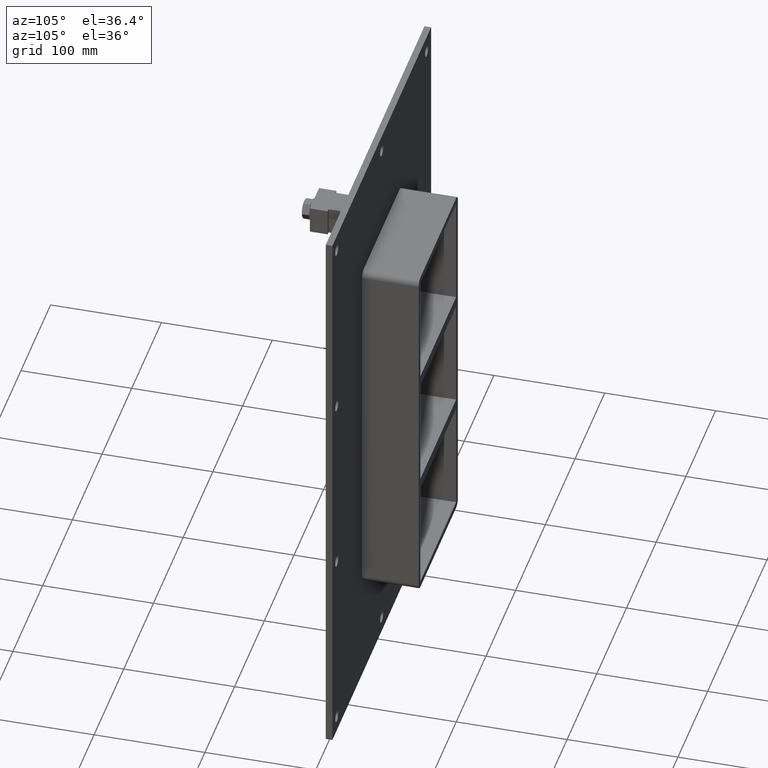
[diagram: clean part render]
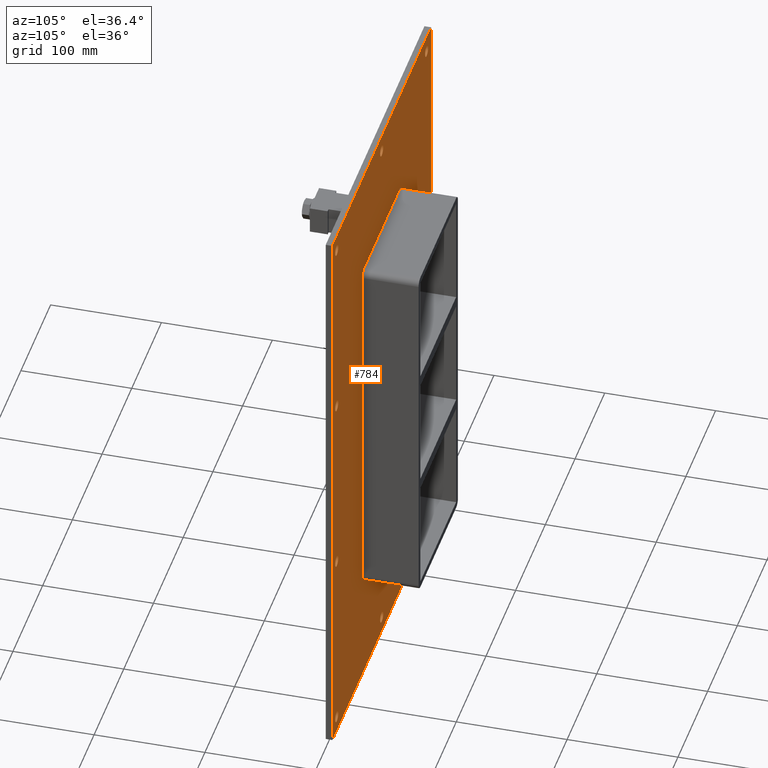
[diagram: same view with one face highlighted and labeled with its STEP entity id]
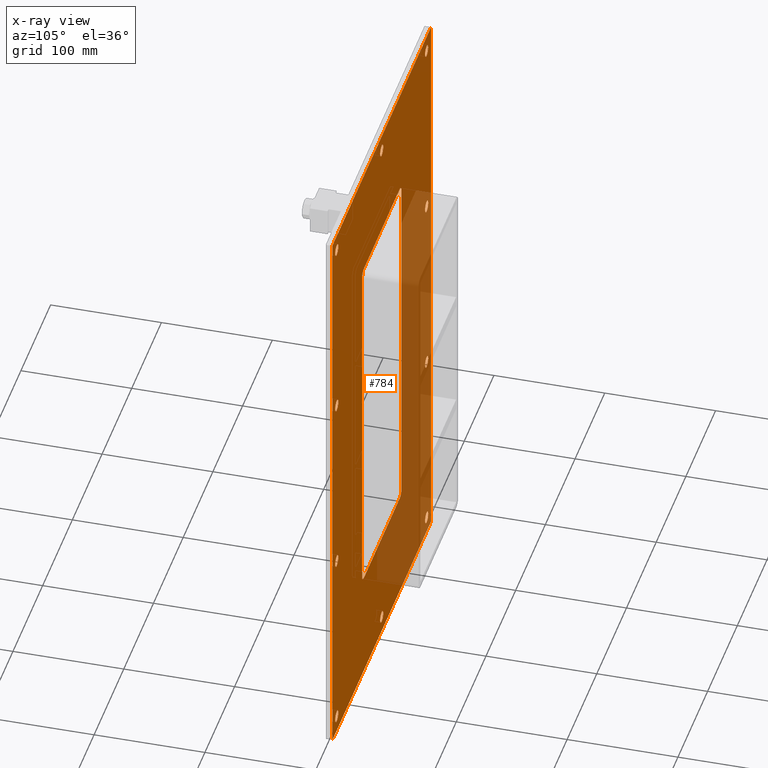
[diagram: x-ray of the same camera — body ghosted, the highlighted face saturated]
A machine part, auxiliary view. The second image highlights one B-rep face of the part: STEP entity #784.
The next image is the same camera in x-ray: the body ghosted, the highlighted face saturated — about 33% of this face is hidden behind the body in this view.
In plain terms, the highlighted planar face has unit normal (0, 1, 0).
Its self-contained STEP definition (entity closure, byte-faithful):
#73=CARTESIAN_POINT('',(-156.50000000000017,6.000000000000014,-252.49999999999983));
#74=VERTEX_POINT('',#73);
#75=CARTESIAN_POINT('',(-151.25000000000017,6.000000000000014,-252.49999999999983));
#76=DIRECTION('',(0.0,-1.0,0.0));
#77=DIRECTION('',(1.0,0.0,0.0));
#78=AXIS2_PLACEMENT_3D('',#75,#76,#77);
#79=CIRCLE('',#78,5.25);
#80=EDGE_CURVE('',#74,#74,#79,.T.);
#101=CARTESIAN_POINT('',(146.09999999999988,6.000000000000014,-84.199999999999847));
#102=VERTEX_POINT('',#101);
#103=CARTESIAN_POINT('',(151.34999999999988,6.000000000000014,-84.199999999999847));
#104=DIRECTION('',(0.0,-1.0,0.0));
#105=DIRECTION('',(1.0,0.0,0.0));
#106=AXIS2_PLACEMENT_3D('',#103,#104,#105);
#107=CIRCLE('',#106,5.25);
#108=EDGE_CURVE('',#102,#102,#107,.T.);
#129=CARTESIAN_POINT('',(-156.50000000000017,6.000000000000014,-84.199999999999847));
#130=VERTEX_POINT('',#129);
#131=CARTESIAN_POINT('',(-151.25000000000017,6.000000000000014,-84.199999999999847));
#132=DIRECTION('',(0.0,-1.0,0.0));
#133=DIRECTION('',(1.0,0.0,0.0));
#134=AXIS2_PLACEMENT_3D('',#131,#132,#133);
#135=CIRCLE('',#134,5.25);
#136=EDGE_CURVE('',#130,#130,#135,.T.);
#157=CARTESIAN_POINT('',(146.09999999999988,6.000000000000014,84.100000000000136));
#158=VERTEX_POINT('',#157);
#159=CARTESIAN_POINT('',(151.34999999999988,6.000000000000014,84.100000000000136));
#160=DIRECTION('',(0.0,-1.0,0.0));
#161=DIRECTION('',(1.0,0.0,0.0));
#162=AXIS2_PLACEMENT_3D('',#159,#160,#161);
#163=CIRCLE('',#162,5.25);
#164=EDGE_CURVE('',#158,#158,#163,.T.);
#185=CARTESIAN_POINT('',(-156.50000000000017,6.000000000000014,84.100000000000136));
#186=VERTEX_POINT('',#185);
#187=CARTESIAN_POINT('',(-151.25000000000017,6.000000000000014,84.100000000000136));
#188=DIRECTION('',(0.0,-1.0,0.0));
#189=DIRECTION('',(1.0,0.0,0.0));
#190=AXIS2_PLACEMENT_3D('',#187,#188,#189);
#191=CIRCLE('',#190,5.25);
#192=EDGE_CURVE('',#186,#186,#191,.T.);
#213=CARTESIAN_POINT('',(-5.200000000000138,6.000000000000014,252.40000000000012));
#214=VERTEX_POINT('',#213);
#215=CARTESIAN_POINT('',(0.049999999999866,6.000000000000014,252.40000000000012));
#216=DIRECTION('',(0.0,-1.0,0.0));
#217=DIRECTION('',(1.0,0.0,0.0));
#218=AXIS2_PLACEMENT_3D('',#215,#216,#217);
#219=CIRCLE('',#218,5.25);
#220=EDGE_CURVE('',#214,#214,#219,.T.);
#241=CARTESIAN_POINT('',(-5.200000000000138,6.000000000000014,-252.5));
#242=VERTEX_POINT('',#241);
#243=CARTESIAN_POINT('',(0.049999999999866,6.000000000000014,-252.5));
#244=DIRECTION('',(0.0,-1.0,0.0));
#245=DIRECTION('',(1.0,0.0,0.0));
#246=AXIS2_PLACEMENT_3D('',#243,#244,#245);
#247=CIRCLE('',#246,5.25);
#248=EDGE_CURVE('',#242,#242,#247,.T.);
#269=CARTESIAN_POINT('',(146.09999999999988,6.000000000000014,-252.5));
#270=VERTEX_POINT('',#269);
#271=CARTESIAN_POINT('',(151.34999999999988,6.000000000000014,-252.5));
#272=DIRECTION('',(0.0,-1.0,0.0));
#273=DIRECTION('',(1.0,0.0,0.0));
#274=AXIS2_PLACEMENT_3D('',#271,#272,#273);
#275=CIRCLE('',#274,5.25);
#276=EDGE_CURVE('',#270,#270,#275,.T.);
#297=CARTESIAN_POINT('',(-156.50000000000017,6.000000000000014,252.40000000000012));
#298=VERTEX_POINT('',#297);
#299=CARTESIAN_POINT('',(-151.25000000000017,6.000000000000014,252.40000000000012));
#300=DIRECTION('',(0.0,-1.0,0.0));
#301=DIRECTION('',(1.0,0.0,0.0));
#302=AXIS2_PLACEMENT_3D('',#299,#300,#301);
#303=CIRCLE('',#302,5.25);
#304=EDGE_CURVE('',#298,#298,#303,.T.);
#325=CARTESIAN_POINT('',(146.09999999999988,6.000000000000014,252.40000000000012));
#326=VERTEX_POINT('',#325);
#327=CARTESIAN_POINT('',(151.34999999999988,6.000000000000014,252.40000000000012));
#328=DIRECTION('',(0.0,-1.0,0.0));
#329=DIRECTION('',(1.0,0.0,0.0));
#330=AXIS2_PLACEMENT_3D('',#327,#328,#329);
#331=CIRCLE('',#330,5.25);
#332=EDGE_CURVE('',#326,#326,#331,.T.);
#645=CARTESIAN_POINT('',(-1.965767E-014,6.000000000000001,0.0));
#646=DIRECTION('',(0.0,1.0,0.0));
#647=DIRECTION('',(0.0,0.0,1.0));
#648=AXIS2_PLACEMENT_3D('',#645,#646,#647);
#649=PLANE('',#648);
#650=CARTESIAN_POINT('',(-166.25000000000003,6.000000000000001,267.5));
#651=VERTEX_POINT('',#650);
#652=CARTESIAN_POINT('',(166.24999999999997,6.000000000000001,267.5));
#653=VERTEX_POINT('',#652);
#654=CARTESIAN_POINT('',(-166.25000000000003,6.000000000000001,267.5));
#655=DIRECTION('',(1.0,0.0,0.0));
#656=VECTOR('',#655,332.5);
#657=LINE('',#654,#656);
#658=EDGE_CURVE('',#651,#653,#657,.T.);
#659=ORIENTED_EDGE('',*,*,#658,.T.);
#660=CARTESIAN_POINT('',(166.24999999999997,6.000000000000001,-267.5));
#661=VERTEX_POINT('',#660);
#662=CARTESIAN_POINT('',(166.25,6.000000000000001,267.5));
#663=DIRECTION('',(0.0,0.0,-1.0));
#664=VECTOR('',#663,535.0);
#665=LINE('',#662,#664);
#666=EDGE_CURVE('',#653,#661,#665,.T.);
#667=ORIENTED_EDGE('',*,*,#666,.T.);
#668=CARTESIAN_POINT('',(-166.25000000000003,6.000000000000001,-267.5));
#669=VERTEX_POINT('',#668);
#670=CARTESIAN_POINT('',(166.25,6.000000000000001,-267.5));
#671=DIRECTION('',(-1.0,0.0,0.0));
#672=VECTOR('',#671,332.5);
#673=LINE('',#670,#672);
#674=EDGE_CURVE('',#661,#669,#673,.T.);
#675=ORIENTED_EDGE('',*,*,#674,.T.);
#676=CARTESIAN_POINT('',(-166.25000000000003,6.000000000000001,-267.5));
#677=DIRECTION('',(0.0,0.0,1.0));
#678=VECTOR('',#677,535.0);
#679=LINE('',#676,#678);
#680=EDGE_CURVE('',#669,#651,#679,.T.);
#681=ORIENTED_EDGE('',*,*,#680,.T.);
#682=EDGE_LOOP('',(#659,#667,#675,#681));
#683=FACE_OUTER_BOUND('',#682,.T.);
#684=ORIENTED_EDGE('',*,*,#80,.T.);
#685=EDGE_LOOP('',(#684));
#686=FACE_BOUND('',#685,.T.);
#687=ORIENTED_EDGE('',*,*,#108,.T.);
#688=EDGE_LOOP('',(#687));
#689=FACE_BOUND('',#688,.T.);
#690=ORIENTED_EDGE('',*,*,#136,.T.);
#691=EDGE_LOOP('',(#690));
#692=FACE_BOUND('',#691,.T.);
#693=ORIENTED_EDGE('',*,*,#164,.T.);
#694=EDGE_LOOP('',(#693));
#695=FACE_BOUND('',#694,.T.);
#696=ORIENTED_EDGE('',*,*,#192,.T.);
#697=EDGE_LOOP('',(#696));
#698=FACE_BOUND('',#697,.T.);
#699=ORIENTED_EDGE('',*,*,#220,.T.);
#700=EDGE_LOOP('',(#699));
#701=FACE_BOUND('',#700,.T.);
#702=ORIENTED_EDGE('',*,*,#248,.T.);
#703=EDGE_LOOP('',(#702));
#704=FACE_BOUND('',#703,.T.);
#705=ORIENTED_EDGE('',*,*,#276,.T.);
#706=EDGE_LOOP('',(#705));
#707=FACE_BOUND('',#706,.T.);
#708=ORIENTED_EDGE('',*,*,#304,.T.);
#709=EDGE_LOOP('',(#708));
#710=FACE_BOUND('',#709,.T.);
#711=ORIENTED_EDGE('',*,*,#332,.T.);
#712=EDGE_LOOP('',(#711));
#713=FACE_BOUND('',#712,.T.);
#714=CARTESIAN_POINT('',(-66.250000000000014,6.000000000000001,161.5));
#715=VERTEX_POINT('',#714);
#716=CARTESIAN_POINT('',(-60.25,6.000000000000001,167.5));
#717=VERTEX_POINT('',#716);
#718=CARTESIAN_POINT('',(-60.25,6.000000000000001,161.5));
#719=DIRECTION('',(0.0,1.0,0.0));
#720=DIRECTION('',(-0.707106781186548,0.0,0.707106781186548));
#721=AXIS2_PLACEMENT_3D('',#718,#719,#720);
#722=CIRCLE('',#721,6.000000000000002);
#723=EDGE_CURVE('',#715,#717,#722,.T.);
#724=ORIENTED_EDGE('',*,*,#723,.F.);
#725=CARTESIAN_POINT('',(-66.250000000000014,6.000000000000001,-161.5));
#726=VERTEX_POINT('',#725);
#727=CARTESIAN_POINT('',(-66.250000000000014,6.000000000000001,-161.5));
#728=DIRECTION('',(0.0,0.0,1.0));
#729=VECTOR('',#728,323.0);
#730=LINE('',#727,#729);
#731=EDGE_CURVE('',#726,#715,#730,.T.);
#732=ORIENTED_EDGE('',*,*,#731,.F.);
#733=CARTESIAN_POINT('',(-60.25,6.000000000000001,-167.5));
#734=VERTEX_POINT('',#733);
#735=CARTESIAN_POINT('',(-60.25,6.000000000000001,-161.5));
#736=DIRECTION('',(0.0,1.0,0.0));
#737=DIRECTION('',(-0.707106781186548,0.0,-0.707106781186548));
#738=AXIS2_PLACEMENT_3D('',#735,#736,#737);
#739=CIRCLE('',#738,6.000000000000002);
#740=EDGE_CURVE('',#734,#726,#739,.T.);
#741=ORIENTED_EDGE('',*,*,#740,.F.);
#742=CARTESIAN_POINT('',(60.249999999999986,6.000000000000001,-167.5));
#743=VERTEX_POINT('',#742);
#744=CARTESIAN_POINT('',(60.249999999999986,6.000000000000001,-167.5));
#745=DIRECTION('',(-1.0,0.0,0.0));
#746=VECTOR('',#745,120.49999999999999);
#747=LINE('',#744,#746);
#748=EDGE_CURVE('',#743,#734,#747,.T.);
#749=ORIENTED_EDGE('',*,*,#748,.F.);
#750=CARTESIAN_POINT('',(66.249999999999986,6.000000000000001,-161.5));
#751=VERTEX_POINT('',#750);
#752=CARTESIAN_POINT('',(60.249999999999986,6.000000000000001,-161.5));
#753=DIRECTION('',(0.0,1.0,0.0));
#754=DIRECTION('',(0.707106781186548,0.0,-0.707106781186548));
#755=AXIS2_PLACEMENT_3D('',#752,#753,#754);
#756=CIRCLE('',#755,6.000000000000002);
#757=EDGE_CURVE('',#751,#743,#756,.T.);
#758=ORIENTED_EDGE('',*,*,#757,.F.);
#759=CARTESIAN_POINT('',(66.249999999999986,6.000000000000001,161.5));
#760=VERTEX_POINT('',#759);
#761=CARTESIAN_POINT('',(66.249999999999986,6.000000000000001,161.5));
#762=DIRECTION('',(0.0,0.0,-1.0));
#763=VECTOR('',#762,323.0);
#764=LINE('',#761,#763);
#765=EDGE_CURVE('',#760,#751,#764,.T.);
#766=ORIENTED_EDGE('',*,*,#765,.F.);
#767=CARTESIAN_POINT('',(60.249999999999986,6.000000000000001,167.5));
#768=VERTEX_POINT('',#767);
#769=CARTESIAN_POINT('',(60.249999999999986,6.000000000000001,161.5));
#770=DIRECTION('',(0.0,1.0,0.0));
#771=DIRECTION('',(0.707106781186548,0.0,0.707106781186548));
#772=AXIS2_PLACEMENT_3D('',#769,#770,#771);
#773=CIRCLE('',#772,6.000000000000002);
#774=EDGE_CURVE('',#768,#760,#773,.T.);
#775=ORIENTED_EDGE('',*,*,#774,.F.);
#776=CARTESIAN_POINT('',(-60.25,6.000000000000001,167.5));
#777=DIRECTION('',(1.0,0.0,0.0));
#778=VECTOR('',#777,120.49999999999999);
#779=LINE('',#776,#778);
#780=EDGE_CURVE('',#717,#768,#779,.T.);
#781=ORIENTED_EDGE('',*,*,#780,.F.);
#782=EDGE_LOOP('',(#724,#732,#741,#749,#758,#766,#775,#781));
#783=FACE_BOUND('',#782,.T.);
#784=ADVANCED_FACE('',(#683,#686,#689,#692,#695,#698,#701,#704,#707,#710,#713,#783),#649,.T.);